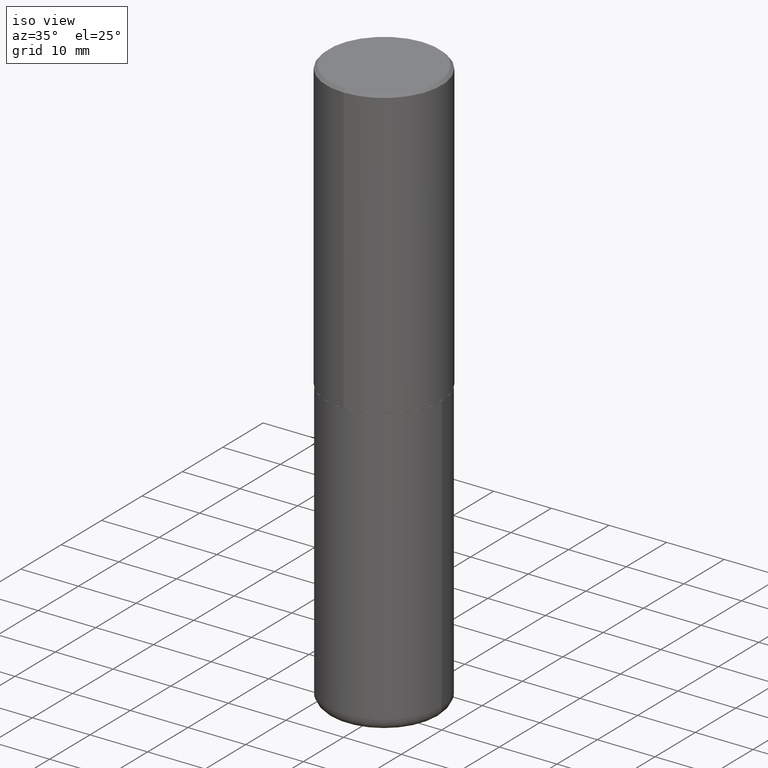
[diagram: clean part render]
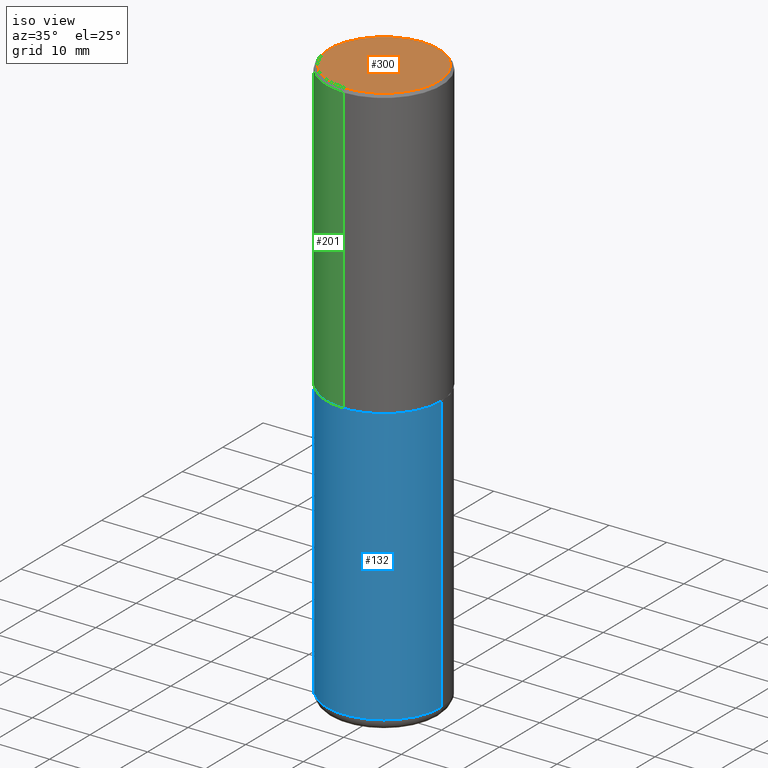
[diagram: same view with three faces highlighted in distinct colors, each labeled with its STEP entity id]
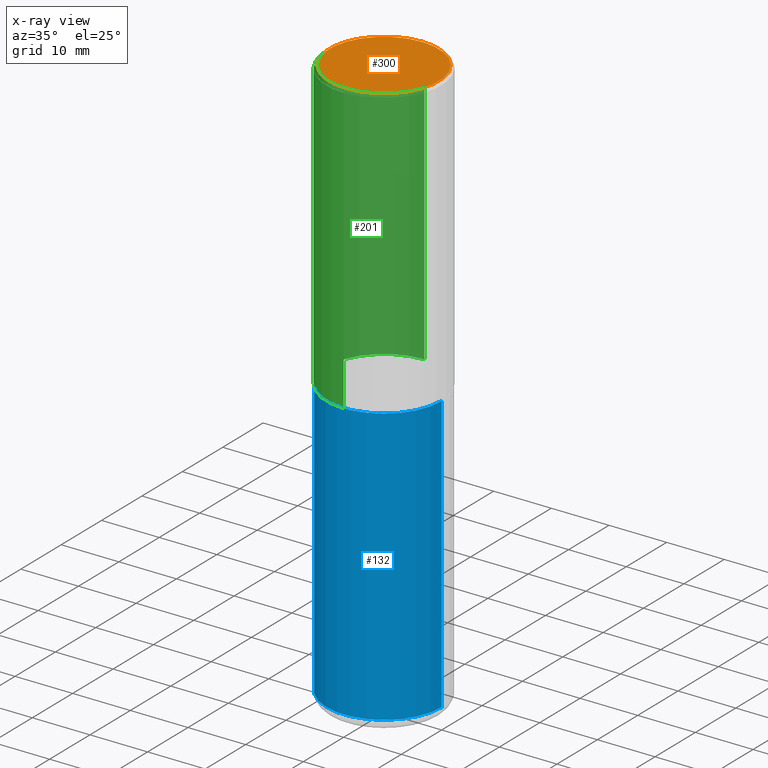
[diagram: x-ray of the same camera — body ghosted, the three highlighted faces saturated]
A machine part, iso view with three faces highlighted in distinct colors.
The next image is the same camera in x-ray (body ghosted, the three faces saturated) — at least one of them is partly hidden behind the body in this view.
Their STEP definitions:

[orange] entity #300 — the highlighted planar face has unit normal (0, -0, -1).
#2 = AXIS2_PLACEMENT_3D ( 'NONE', #55, #203, #124 ) ;
#12 = DIRECTION ( 'NONE',  ( 2.447902336346030930E-29, -3.487996385144809360E-15, -1.000000000000000000 ) ) ;
#16 = PLANE ( 'NONE',  #98 ) ;
#55 = CARTESIAN_POINT ( 'NONE',  ( -5.506038201652776757E-45, 7.845509626213831500E-31, 2.249288347782537153E-16 ) ) ;
#98 = AXIS2_PLACEMENT_3D ( 'NONE', #169, #12, #141 ) ;
#101 = EDGE_LOOP ( 'NONE', ( #361, #384 ) ) ;
#113 = CARTESIAN_POINT ( 'NONE',  ( -2.632373081744936315E-15, -0.3736999999999999211, 1.528393083906868747E-15 ) ) ;
#124 = DIRECTION ( 'NONE',  ( -6.982962677686265133E-15, -1.000000000000000000, 3.487996385144809755E-15 ) ) ;
#141 = DIRECTION ( 'NONE',  ( 6.982962677686265922E-15, 1.000000000000000000, -3.487996385144809360E-15 ) ) ;
#169 = CARTESIAN_POINT ( 'NONE',  ( 2.609533152651356620E-15, 0.3736999999999999211, -1.190999831739488445E-15 ) ) ;
#178 = FACE_OUTER_BOUND ( 'NONE', #101, .T. ) ;
#203 = DIRECTION ( 'NONE',  ( -2.447902336346030930E-29, 3.487996385144809755E-15, 1.000000000000000000 ) ) ;
#212 = DIRECTION ( 'NONE',  ( -6.982962677686265133E-15, -1.000000000000000000, 3.487996385144809755E-15 ) ) ;
#224 = CIRCLE ( 'NONE', #2, 0.3736999999999999211 ) ;
#271 = VERTEX_POINT ( 'NONE', #113 ) ;
#280 = EDGE_CURVE ( 'NONE', #271, #351, #224, .T. ) ;
#284 = EDGE_CURVE ( 'NONE', #351, #271, #293, .T. ) ;
#293 = CIRCLE ( 'NONE', #296, 0.3736999999999999211 ) ;
#296 = AXIS2_PLACEMENT_3D ( 'NONE', #374, #393, #212 ) ;
#300 = ADVANCED_FACE ( 'NONE', ( #178 ), #16, .F. ) ;
#351 = VERTEX_POINT ( 'NONE', #363 ) ;
#361 = ORIENTED_EDGE ( 'NONE', *, *, #284, .T. ) ;
#363 = CARTESIAN_POINT ( 'NONE',  ( 2.679362779428220707E-15, 0.3736999999999999211, -1.078535414350361218E-15 ) ) ;
#374 = CARTESIAN_POINT ( 'NONE',  ( -5.506038201652776757E-45, 7.845509626213831500E-31, 2.249288347782537153E-16 ) ) ;
#384 = ORIENTED_EDGE ( 'NONE', *, *, #280, .T. ) ;
#393 = DIRECTION ( 'NONE',  ( -2.447902336346030930E-29, 3.487996385144809755E-15, 1.000000000000000000 ) ) ;

[blue] entity #132 — the highlighted cylindrical surface (partial cylindrical patch) has radius 10 mm, axis along (-0, 0, 1).
#19 = AXIS2_PLACEMENT_3D ( 'NONE', #342, #243, #49 ) ;
#23 = DIRECTION ( 'NONE',  ( -2.445468806185136597E-29, 3.491481338843145583E-15, 1.000000000000000000 ) ) ;
#25 = AXIS2_PLACEMENT_3D ( 'NONE', #343, #244, #80 ) ;
#49 = DIRECTION ( 'NONE',  ( 1.000000000000000000, -6.982962677686265922E-15, 4.876176775795935793E-29 ) ) ;
#51 = VERTEX_POINT ( 'NONE', #88 ) ;
#54 = EDGE_CURVE ( 'NONE', #339, #399, #199, .T. ) ;
#56 = CARTESIAN_POINT ( 'NONE',  ( 4.813905344975441835E-29, -6.872981015512731707E-15, -1.968500000000000139 ) ) ;
#72 = ORIENTED_EDGE ( 'NONE', *, *, #354, .T. ) ;
#75 = AXIS2_PLACEMENT_3D ( 'NONE', #56, #23, #120 ) ;
#80 = DIRECTION ( 'NONE',  ( 1.000000000000000000, -6.982962677686267499E-15, 0.000000000000000000 ) ) ;
#88 = CARTESIAN_POINT ( 'NONE',  ( -0.3937000000000001054, -1.067377569897099292E-14, -3.858300000000000285 ) ) ;
#104 = LINE ( 'NONE', #297, #134 ) ;
#105 = ORIENTED_EDGE ( 'NONE', *, *, #54, .F. ) ;
#107 = LINE ( 'NONE', #303, #197 ) ;
#118 = CYLINDRICAL_SURFACE ( 'NONE', #19, 0.3937000000000000499 ) ;
#120 = DIRECTION ( 'NONE',  ( 1.000000000000000000, -6.982962677686265133E-15, 0.000000000000000000 ) ) ;
#132 = ADVANCED_FACE ( 'NONE', ( #245 ), #118, .T. ) ;
#134 = VECTOR ( 'NONE', #175, 39.37007874015748143 ) ;
#150 = DIRECTION ( 'NONE',  ( -2.445468806185136877E-29, 3.491481338843145188E-15, 1.000000000000000000 ) ) ;
#151 = CIRCLE ( 'NONE', #25, 0.3937000000000000499 ) ;
#175 = DIRECTION ( 'NONE',  ( -2.445468806185136877E-29, 3.491481338843145188E-15, 1.000000000000000000 ) ) ;
#197 = VECTOR ( 'NONE', #150, 39.37007874015748143 ) ;
#199 = CIRCLE ( 'NONE', #75, 0.3937000000000000499 ) ;
#200 = EDGE_LOOP ( 'NONE', ( #347, #392, #72, #105 ) ) ;
#243 = DIRECTION ( 'NONE',  ( -2.445468806185136597E-29, 3.491481338843145583E-15, 1.000000000000000000 ) ) ;
#244 = DIRECTION ( 'NONE',  ( -2.445468806185136597E-29, 3.491481338843145583E-15, 1.000000000000000000 ) ) ;
#245 = FACE_OUTER_BOUND ( 'NONE', #200, .T. ) ;
#260 = VERTEX_POINT ( 'NONE', #388 ) ;
#278 = CARTESIAN_POINT ( 'NONE',  ( 0.3937000000000000499, -9.622173421717814924E-15, -1.968500000000000139 ) ) ;
#297 = CARTESIAN_POINT ( 'NONE',  ( 0.3937000000000000499, -2.749192406205083217E-15, 1.919750796630860172E-29 ) ) ;
#303 = CARTESIAN_POINT ( 'NONE',  ( -0.3937000000000000499, 2.797406750687514786E-15, -1.936584745033356735E-29 ) ) ;
#325 = EDGE_CURVE ( 'NONE', #51, #260, #151, .T. ) ;
#338 = CARTESIAN_POINT ( 'NONE',  ( -0.3937000000000000499, -7.374674981898105316E-15, -1.968500000000000139 ) ) ;
#339 = VERTEX_POINT ( 'NONE', #338 ) ;
#342 = CARTESIAN_POINT ( 'NONE',  ( 0.000000000000000000, 0.000000000000000000, 0.000000000000000000 ) ) ;
#343 = CARTESIAN_POINT ( 'NONE',  ( 9.435352294904112142E-29, -1.347118244965850850E-14, -3.858300000000000285 ) ) ;
#347 = ORIENTED_EDGE ( 'NONE', *, *, #400, .F. ) ;
#354 = EDGE_CURVE ( 'NONE', #260, #399, #104, .T. ) ;
#388 = CARTESIAN_POINT ( 'NONE',  ( 0.3937000000000001054, -1.622037485586359329E-14, -3.858300000000000285 ) ) ;
#392 = ORIENTED_EDGE ( 'NONE', *, *, #325, .T. ) ;
#399 = VERTEX_POINT ( 'NONE', #278 ) ;
#400 = EDGE_CURVE ( 'NONE', #51, #339, #107, .T. ) ;

[green] entity #201 — the highlighted cylindrical surface (partial cylindrical patch) has radius 10 mm, axis along (-0, 0, 1).
#11 = VERTEX_POINT ( 'NONE', #263 ) ;
#14 = DIRECTION ( 'NONE',  ( -2.447902336346030930E-29, 3.487996385144809755E-15, 1.000000000000000000 ) ) ;
#18 = DIRECTION ( 'NONE',  ( -2.447902336346030930E-29, 3.487996385144809755E-15, 1.000000000000000000 ) ) ;
#40 = VERTEX_POINT ( 'NONE', #409 ) ;
#43 = VERTEX_POINT ( 'NONE', #407 ) ;
#46 = EDGE_CURVE ( 'NONE', #40, #43, #216, .T. ) ;
#50 = CARTESIAN_POINT ( 'NONE',  ( 0.000000000000000000, 0.000000000000000000, 0.000000000000000000 ) ) ;
#53 = ORIENTED_EDGE ( 'NONE', *, *, #322, .T. ) ;
#64 = VECTOR ( 'NONE', #145, 39.37007874015748143 ) ;
#68 = ORIENTED_EDGE ( 'NONE', *, *, #46, .F. ) ;
#74 = CIRCLE ( 'NONE', #174, 0.3937000000000002720 ) ;
#97 = DIRECTION ( 'NONE',  ( -2.447902336346030930E-29, 3.487996385144809755E-15, 1.000000000000000000 ) ) ;
#116 = CARTESIAN_POINT ( 'NONE',  ( -2.700978061722651647E-15, -0.3937000000000001609, -0.01999999999999870978 ) ) ;
#128 = DIRECTION ( 'NONE',  ( -6.982962677686265922E-15, -1.000000000000000000, 3.469453890861393601E-15 ) ) ;
#130 = FACE_OUTER_BOUND ( 'NONE', #176, .T. ) ;
#145 = DIRECTION ( 'NONE',  ( -2.447902336346030930E-29, 3.487996385144809360E-15, 1.000000000000000000 ) ) ;
#153 = DIRECTION ( 'NONE',  ( -2.447902336346030930E-29, 3.487996385144809360E-15, 1.000000000000000000 ) ) ;
#174 = AXIS2_PLACEMENT_3D ( 'NONE', #310, #18, #128 ) ;
#176 = EDGE_LOOP ( 'NONE', ( #68, #207, #53, #315 ) ) ;
#181 = CARTESIAN_POINT ( 'NONE',  ( -2.749192406205084400E-15, -0.3937000000000002164, 1.373224176831512262E-15 ) ) ;
#188 = AXIS2_PLACEMENT_3D ( 'NONE', #50, #14, #274 ) ;
#201 = ADVANCED_FACE ( 'NONE', ( #130 ), #211, .T. ) ;
#207 = ORIENTED_EDGE ( 'NONE', *, *, #229, .T. ) ;
#211 = CYLINDRICAL_SURFACE ( 'NONE', #188, 0.3937000000000002164 ) ;
#216 = LINE ( 'NONE', #247, #222 ) ;
#222 = VECTOR ( 'NONE', #153, 39.37007874015748143 ) ;
#229 = EDGE_CURVE ( 'NONE', #40, #11, #74, .T. ) ;
#247 = CARTESIAN_POINT ( 'NONE',  ( 2.797406750687515575E-15, 0.3937000000000002164, -1.373224176831512262E-15 ) ) ;
#254 = EDGE_CURVE ( 'NONE', #43, #288, #408, .T. ) ;
#263 = CARTESIAN_POINT ( 'NONE',  ( -2.749192406205036674E-15, -0.3937000000000070998, -1.967499999999998694 ) ) ;
#274 = DIRECTION ( 'NONE',  ( -6.982962677686265922E-15, -1.000000000000000000, 3.487996385144809360E-15 ) ) ;
#281 = AXIS2_PLACEMENT_3D ( 'NONE', #386, #97, #353 ) ;
#288 = VERTEX_POINT ( 'NONE', #116 ) ;
#310 = CARTESIAN_POINT ( 'NONE',  ( 4.816247846760815671E-29, -6.862632887772413316E-15, -1.967500000000000027 ) ) ;
#315 = ORIENTED_EDGE ( 'NONE', *, *, #254, .F. ) ;
#322 = EDGE_CURVE ( 'NONE', #11, #288, #332, .T. ) ;
#332 = LINE ( 'NONE', #181, #64 ) ;
#353 = DIRECTION ( 'NONE',  ( -6.982962677686265133E-15, -1.000000000000000000, 3.491137977679279029E-15 ) ) ;
#386 = CARTESIAN_POINT ( 'NONE',  ( 4.895804672692082949E-31, -6.975992770289649092E-17, -0.02000000000000008715 ) ) ;
#407 = CARTESIAN_POINT ( 'NONE',  ( 2.749192406205084005E-15, 0.3937000000000000499, -0.02000000000000146105 ) ) ;
#408 = CIRCLE ( 'NONE', #281, 0.3937000000000001054 ) ;
#409 = CARTESIAN_POINT ( 'NONE',  ( 2.797406750687540424E-15, 0.3936999999999934441, -1.967500000000001359 ) ) ;